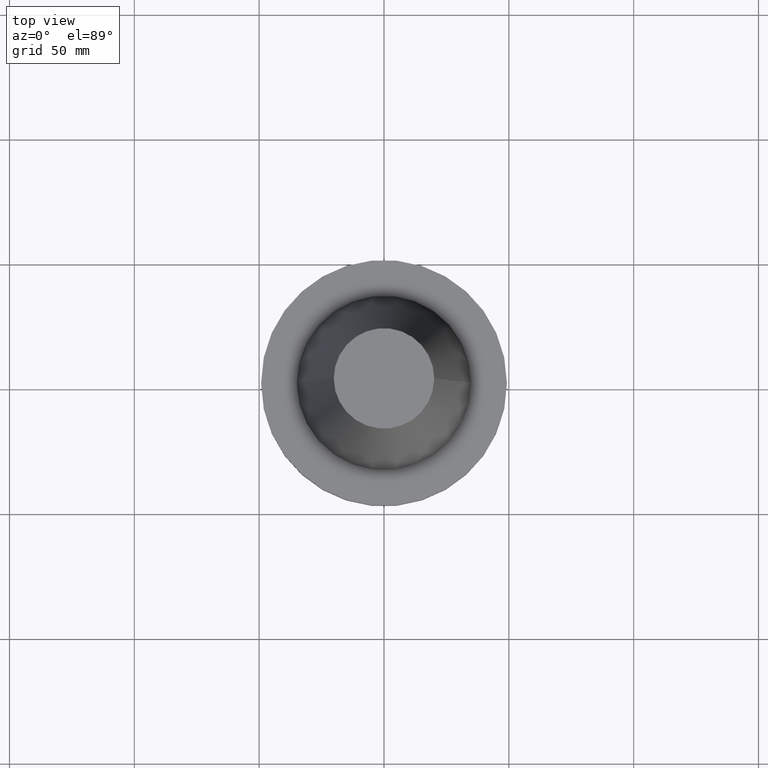
[diagram: clean part render]
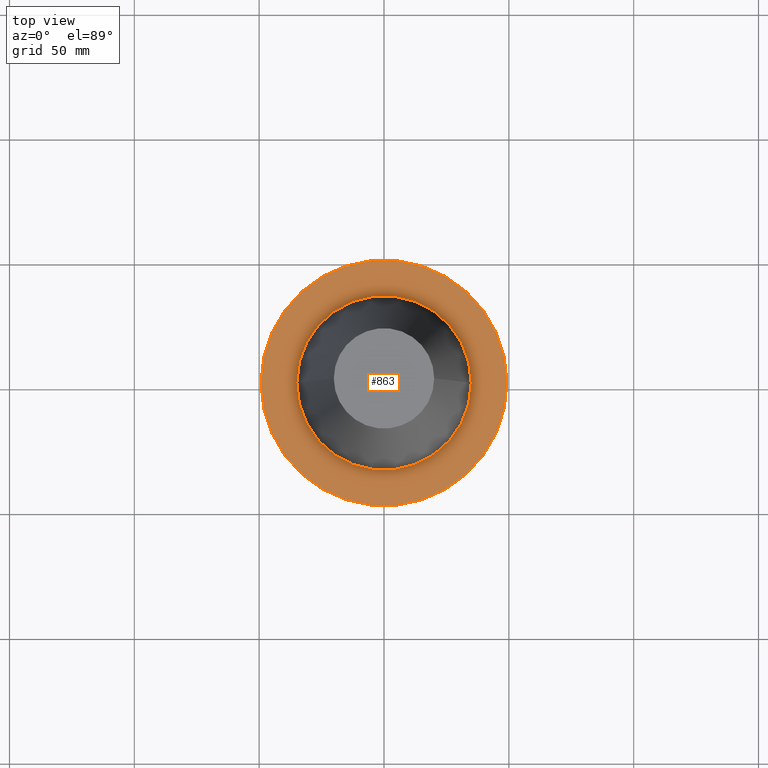
[diagram: same view with one face highlighted and labeled with its STEP entity id]
A machine part, top view. The second image highlights one B-rep face of the part: STEP entity #863.
In plain terms, the highlighted planar face has unit normal (0, 0, -1).
Its self-contained STEP definition (entity closure, byte-faithful):
#1 = DIRECTION ( 'NONE',  ( -0.000000000000000000, -0.000000000000000000, 1.000000000000000000 ) ) ;
#4 = CARTESIAN_POINT ( 'NONE',  ( 0.000000000000000000, 0.000000000000000000, -1.499999999999987566 ) ) ;
#15 = CIRCLE ( 'NONE', #406, 49.21499999999999631 ) ;
#23 = CARTESIAN_POINT ( 'NONE',  ( -49.21499999999999631, 6.027099222003697826E-15, -1.499999999999987566 ) ) ;
#31 = VERTEX_POINT ( 'NONE', #1044 ) ;
#79 = CIRCLE ( 'NONE', #704, 34.92499999999999005 ) ;
#93 = DIRECTION ( 'NONE',  ( 1.000000000000000000, 0.000000000000000000, 0.000000000000000000 ) ) ;
#136 = CARTESIAN_POINT ( 'NONE',  ( 0.000000000000000000, 49.21499999999999631, -1.499999999999992895 ) ) ;
#149 = CIRCLE ( 'NONE', #428, 34.92499999999999005 ) ;
#158 = EDGE_LOOP ( 'NONE', ( #507, #697 ) ) ;
#166 = CARTESIAN_POINT ( 'NONE',  ( -34.92499999999999005, 4.277078946022130098E-15, -1.499999999999987566 ) ) ;
#227 = DIRECTION ( 'NONE',  ( -1.000000000000000000, 0.000000000000000000, -0.000000000000000000 ) ) ;
#229 = ORIENTED_EDGE ( 'NONE', *, *, #345, .T. ) ;
#315 = DIRECTION ( 'NONE',  ( -0.000000000000000000, -0.000000000000000000, 1.000000000000000000 ) ) ;
#345 = EDGE_CURVE ( 'NONE', #31, #438, #15, .T. ) ;
#363 = VERTEX_POINT ( 'NONE', #166 ) ;
#404 = AXIS2_PLACEMENT_3D ( 'NONE', #1082, #734, #93 ) ;
#406 = AXIS2_PLACEMENT_3D ( 'NONE', #743, #315, #646 ) ;
#428 = AXIS2_PLACEMENT_3D ( 'NONE', #4, #650, #765 ) ;
#438 = VERTEX_POINT ( 'NONE', #23 ) ;
#460 = PLANE ( 'NONE',  #813 ) ;
#507 = ORIENTED_EDGE ( 'NONE', *, *, #1061, .F. ) ;
#546 = CIRCLE ( 'NONE', #404, 49.21499999999999631 ) ;
#555 = DIRECTION ( 'NONE',  ( 0.000000000000000000, 0.000000000000000000, -1.000000000000000000 ) ) ;
#564 = EDGE_CURVE ( 'NONE', #363, #884, #149, .T. ) ;
#644 = CARTESIAN_POINT ( 'NONE',  ( 34.92499999999999005, 0.000000000000000000, -1.499999999999987566 ) ) ;
#646 = DIRECTION ( 'NONE',  ( 1.000000000000000000, 0.000000000000000000, 0.000000000000000000 ) ) ;
#650 = DIRECTION ( 'NONE',  ( -0.000000000000000000, -0.000000000000000000, 1.000000000000000000 ) ) ;
#659 = ORIENTED_EDGE ( 'NONE', *, *, #1023, .T. ) ;
#697 = ORIENTED_EDGE ( 'NONE', *, *, #564, .F. ) ;
#704 = AXIS2_PLACEMENT_3D ( 'NONE', #1001, #1, #1007 ) ;
#718 = FACE_OUTER_BOUND ( 'NONE', #1047, .T. ) ;
#734 = DIRECTION ( 'NONE',  ( -0.000000000000000000, -0.000000000000000000, 1.000000000000000000 ) ) ;
#743 = CARTESIAN_POINT ( 'NONE',  ( 0.000000000000000000, 0.000000000000000000, -1.499999999999987566 ) ) ;
#765 = DIRECTION ( 'NONE',  ( 1.000000000000000000, 0.000000000000000000, 0.000000000000000000 ) ) ;
#813 = AXIS2_PLACEMENT_3D ( 'NONE', #136, #555, #227 ) ;
#863 = ADVANCED_FACE ( 'NONE', ( #897, #718 ), #460, .F. ) ;
#884 = VERTEX_POINT ( 'NONE', #644 ) ;
#897 = FACE_BOUND ( 'NONE', #158, .T. ) ;
#1001 = CARTESIAN_POINT ( 'NONE',  ( 0.000000000000000000, 0.000000000000000000, -1.499999999999987566 ) ) ;
#1007 = DIRECTION ( 'NONE',  ( 1.000000000000000000, 0.000000000000000000, 0.000000000000000000 ) ) ;
#1023 = EDGE_CURVE ( 'NONE', #438, #31, #546, .T. ) ;
#1044 = CARTESIAN_POINT ( 'NONE',  ( 49.21499999999999631, 0.000000000000000000, -1.499999999999987566 ) ) ;
#1047 = EDGE_LOOP ( 'NONE', ( #229, #659 ) ) ;
#1061 = EDGE_CURVE ( 'NONE', #884, #363, #79, .T. ) ;
#1082 = CARTESIAN_POINT ( 'NONE',  ( 0.000000000000000000, 0.000000000000000000, -1.499999999999987566 ) ) ;